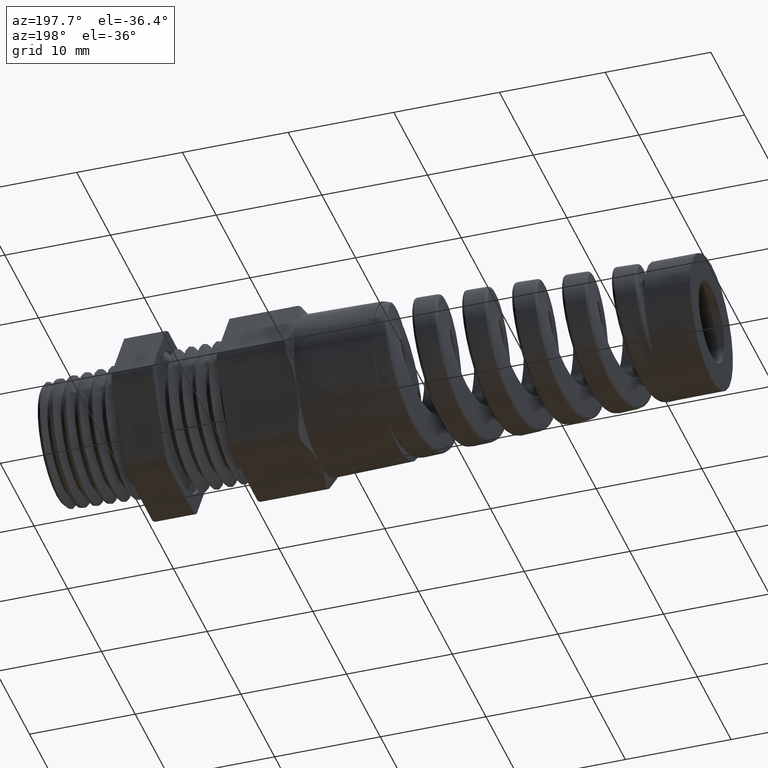
[diagram: clean part render]
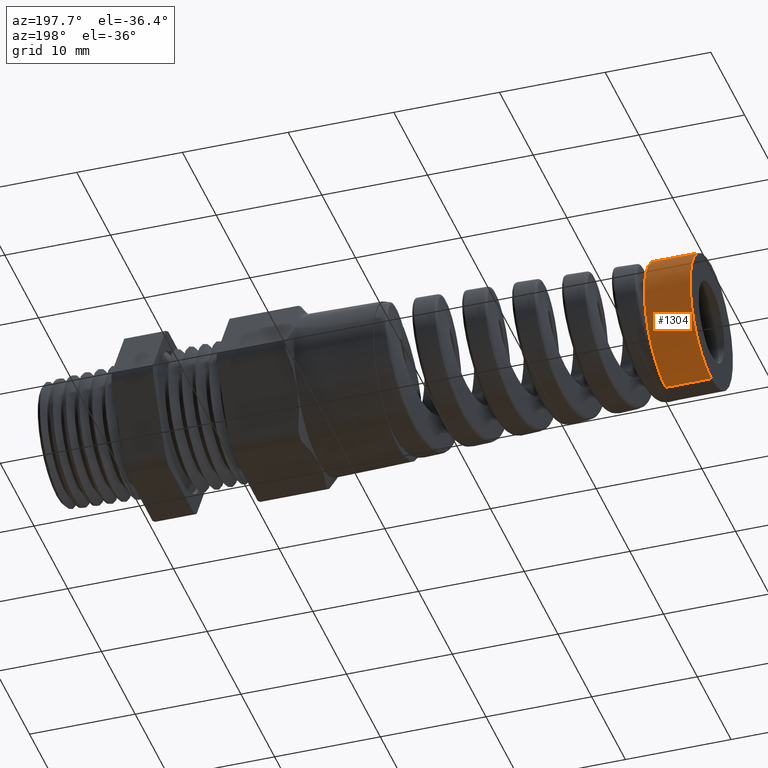
[diagram: same view with one face highlighted and labeled with its STEP entity id]
A machine part, auxiliary view. The second image highlights one B-rep face of the part: STEP entity #1304.
In plain terms, the highlighted cylindrical surface (partial cylindrical patch) has radius 6.3477 mm, axis along (1, 0, 0).
Its self-contained STEP definition (entity closure, byte-faithful):
#1290 = EDGE_LOOP ( 'NONE', ( #1306, #1689, #1692, #1695, #1698 ) ) ;
#1294 = VERTEX_POINT ( 'NONE', #6572 ) ;
#1300 = VERTEX_POINT ( 'NONE', #6570 ) ;
#1303 = EDGE_CURVE ( 'NONE', #1294, #1300, #6562, .T. ) ;
#1304 = ADVANCED_FACE ( 'NONE', ( #6563 ), #6622, .T. ) ;
#1306 = ORIENTED_EDGE ( 'NONE', *, *, #1303, .F. ) ;
#1689 = ORIENTED_EDGE ( 'NONE', *, *, #1690, .T. ) ;
#1690 = EDGE_CURVE ( 'NONE', #1294, #1691, #7306, .T. ) ;
#1691 = VERTEX_POINT ( 'NONE', #7372 ) ;
#1692 = ORIENTED_EDGE ( 'NONE', *, *, #1693, .T. ) ;
#1693 = EDGE_CURVE ( 'NONE', #1691, #1694, #7369, .T. ) ;
#1694 = VERTEX_POINT ( 'NONE', #7370 ) ;
#1695 = ORIENTED_EDGE ( 'NONE', *, *, #1696, .F. ) ;
#1696 = EDGE_CURVE ( 'NONE', #1697, #1694, #7363, .T. ) ;
#1697 = VERTEX_POINT ( 'NONE', #7358 ) ;
#1698 = ORIENTED_EDGE ( 'NONE', *, *, #1699, .F. ) ;
#1699 = EDGE_CURVE ( 'NONE', #1300, #1697, #7357, .T. ) ;
#6559 = DIRECTION ( 'NONE',  ( 0.0000000000000000000, 0.0000000000000000000, 1.000000000000000000 ) ) ;
#6560 = DIRECTION ( 'NONE',  ( -1.000000000000000000, 0.0000000000000000000, 0.0000000000000000000 ) ) ;
#6561 = AXIS2_PLACEMENT_3D ( 'NONE', #6569, #6560, #6559 ) ;
#6562 = CIRCLE ( 'NONE', #6561, 0.2499087653803774300 ) ;
#6563 = FACE_OUTER_BOUND ( 'NONE', #1290, .T. ) ;
#6569 = CARTESIAN_POINT ( 'NONE',  ( -2.129999999999999900, 0.0000000000000000000, 0.0000000000000000000 ) ) ;
#6570 = CARTESIAN_POINT ( 'NONE',  ( -2.129999999999999900, 0.0000000000000000000, -0.2499087653803774300 ) ) ;
#6572 = CARTESIAN_POINT ( 'NONE',  ( -2.129999999999999900, 3.060499696019460000E-017, 0.2499087653803774300 ) ) ;
#6619 = DIRECTION ( 'NONE',  ( 0.0000000000000000000, 0.0000000000000000000, -1.000000000000000000 ) ) ;
#6620 = DIRECTION ( 'NONE',  ( 1.000000000000000000, 0.0000000000000000000, 0.0000000000000000000 ) ) ;
#6621 = AXIS2_PLACEMENT_3D ( 'NONE', #6623, #6620, #6619 ) ;
#6622 = CYLINDRICAL_SURFACE ( 'NONE', #6621, 0.2499087653803774300 ) ;
#6623 = CARTESIAN_POINT ( 'NONE',  ( -2.129999999999999900, 0.0000000000000000000, 0.0000000000000000000 ) ) ;
#7305 = CARTESIAN_POINT ( 'NONE',  ( -2.129999999999999900, 3.060499696019460000E-017, 0.2499087653803774300 ) ) ;
#7306 = LINE ( 'NONE', #7305, #7375 ) ;
#7354 = DIRECTION ( 'NONE',  ( 1.000000000000000000, 0.0000000000000000000, 0.0000000000000000000 ) ) ;
#7355 = VECTOR ( 'NONE', #7354, 39.37007874015748100 ) ;
#7356 = CARTESIAN_POINT ( 'NONE',  ( -2.129999999999999900, 0.0000000000000000000, -0.2499087653803774300 ) ) ;
#7357 = LINE ( 'NONE', #7356, #7355 ) ;
#7358 = CARTESIAN_POINT ( 'NONE',  ( -1.959600000000000200, 0.0000000000000000000, -0.2499087653803553600 ) ) ;
#7359 = DIRECTION ( 'NONE',  ( 0.0000000000000000000, 0.0000000000000000000, -1.000000000000000000 ) ) ;
#7360 = DIRECTION ( 'NONE',  ( 1.000000000000000000, 0.0000000000000000000, 0.0000000000000000000 ) ) ;
#7361 = CARTESIAN_POINT ( 'NONE',  ( -1.959600000000000200, 0.0000000000000000000, 0.0000000000000000000 ) ) ;
#7362 = AXIS2_PLACEMENT_3D ( 'NONE', #7361, #7360, #7359 ) ;
#7363 = CIRCLE ( 'NONE', #7362, 0.2499087653803553600 ) ;
#7364 = DIRECTION ( 'NONE',  ( 0.0000000000000000000, 0.0000000000000000000, 1.000000000000000000 ) ) ;
#7365 = DIRECTION ( 'NONE',  ( -1.000000000000000000, 0.0000000000000000000, 0.0000000000000000000 ) ) ;
#7366 = CARTESIAN_POINT ( 'NONE',  ( -1.959600000000000000, 0.0000000000000000000, 0.0000000000000000000 ) ) ;
#7367 = AXIS2_PLACEMENT_3D ( 'NONE', #7366, #7365, #7364 ) ;
#7369 = CIRCLE ( 'NONE', #7367, 0.2499087653803774300 ) ;
#7370 = CARTESIAN_POINT ( 'NONE',  ( -1.959600000000000200, 0.1162995760524254100, -0.2211985524906517300 ) ) ;
#7372 = CARTESIAN_POINT ( 'NONE',  ( -1.959600000000000000, 3.060499696019460000E-017, 0.2499087653803774300 ) ) ;
#7374 = DIRECTION ( 'NONE',  ( 1.000000000000000000, 0.0000000000000000000, 0.0000000000000000000 ) ) ;
#7375 = VECTOR ( 'NONE', #7374, 39.37007874015748100 ) ;